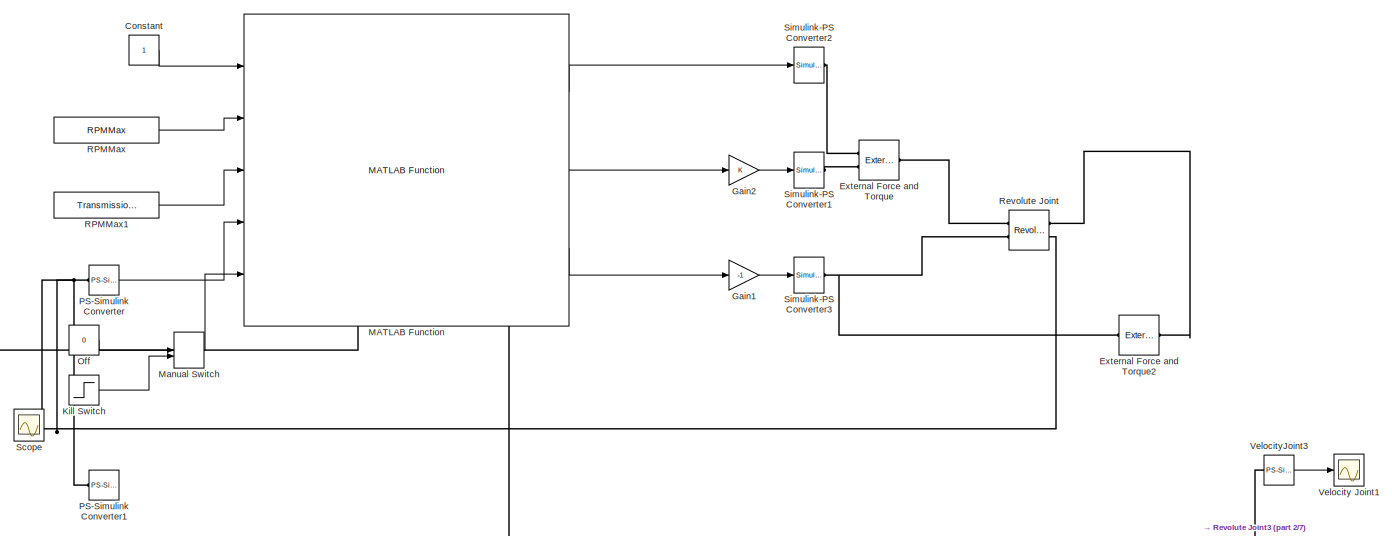
[diagram: root canvas - part 1/7, top center region]
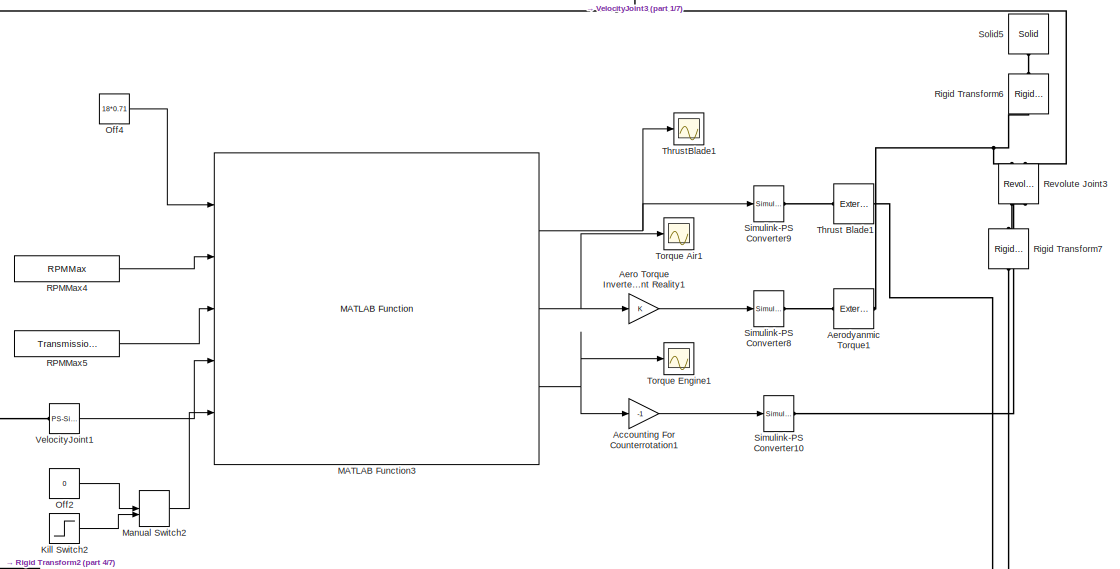
[diagram: root canvas - part 2/7, top center region]
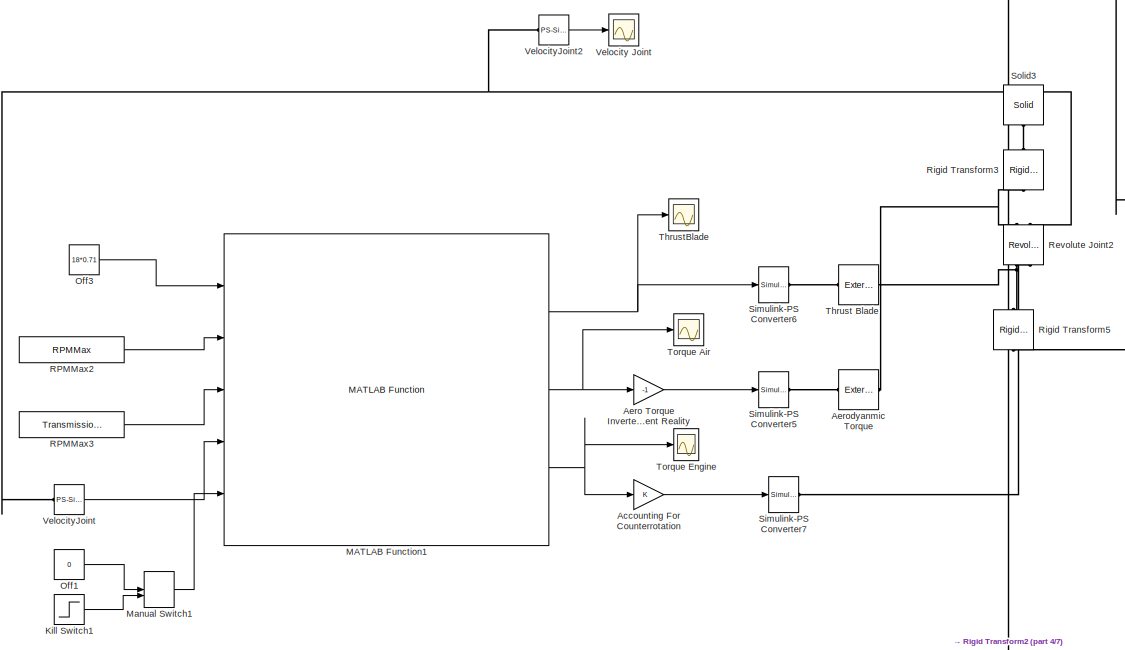
[diagram: root canvas - part 3/7, top left region]
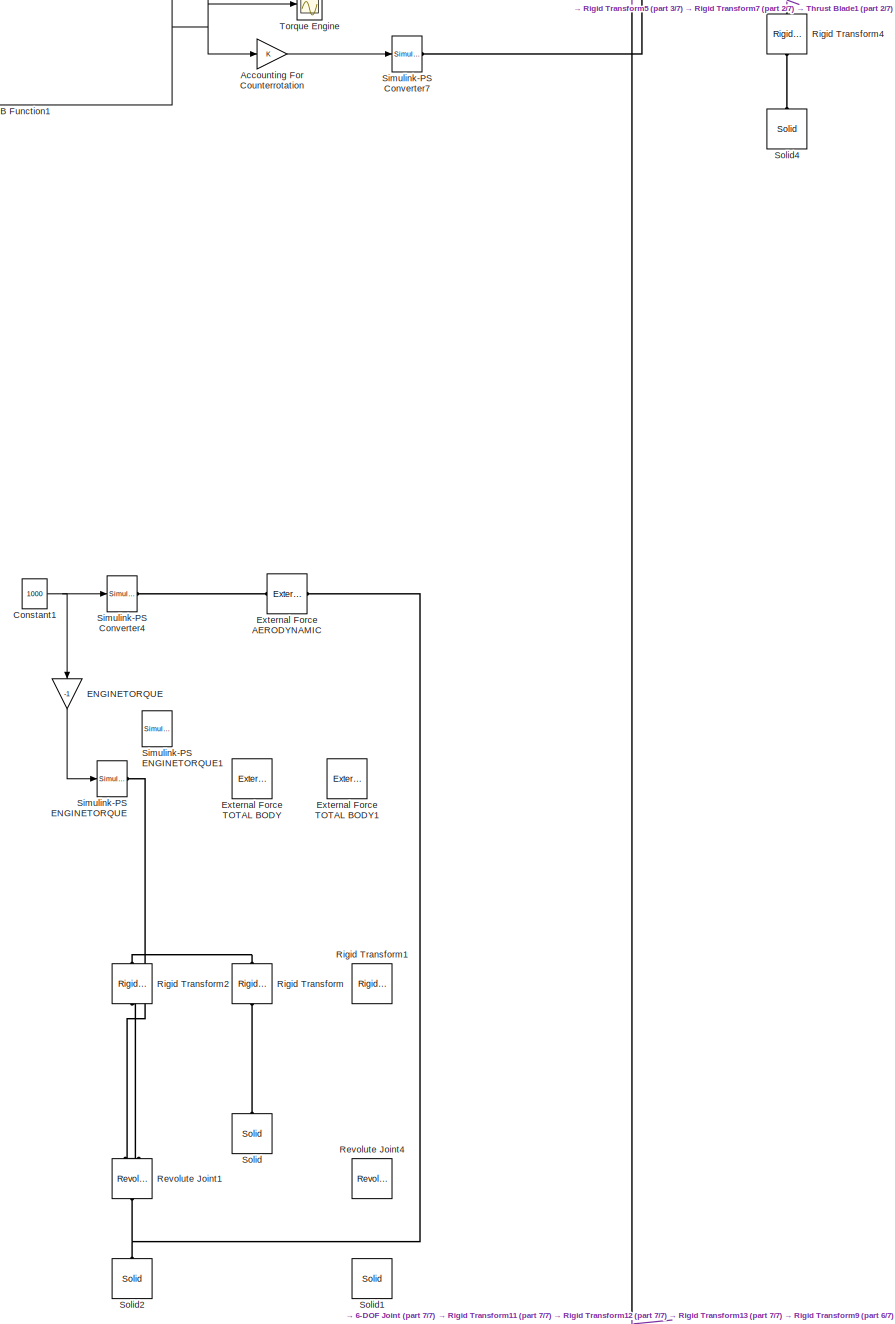
[diagram: root canvas - part 4/7, middle left region]
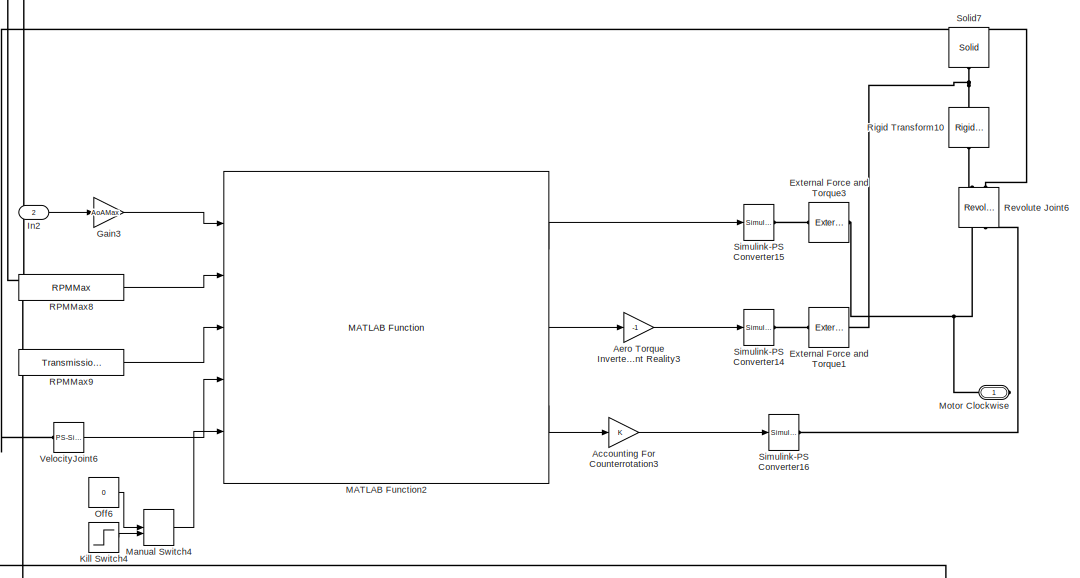
[diagram: root canvas - part 5/7, top right region]
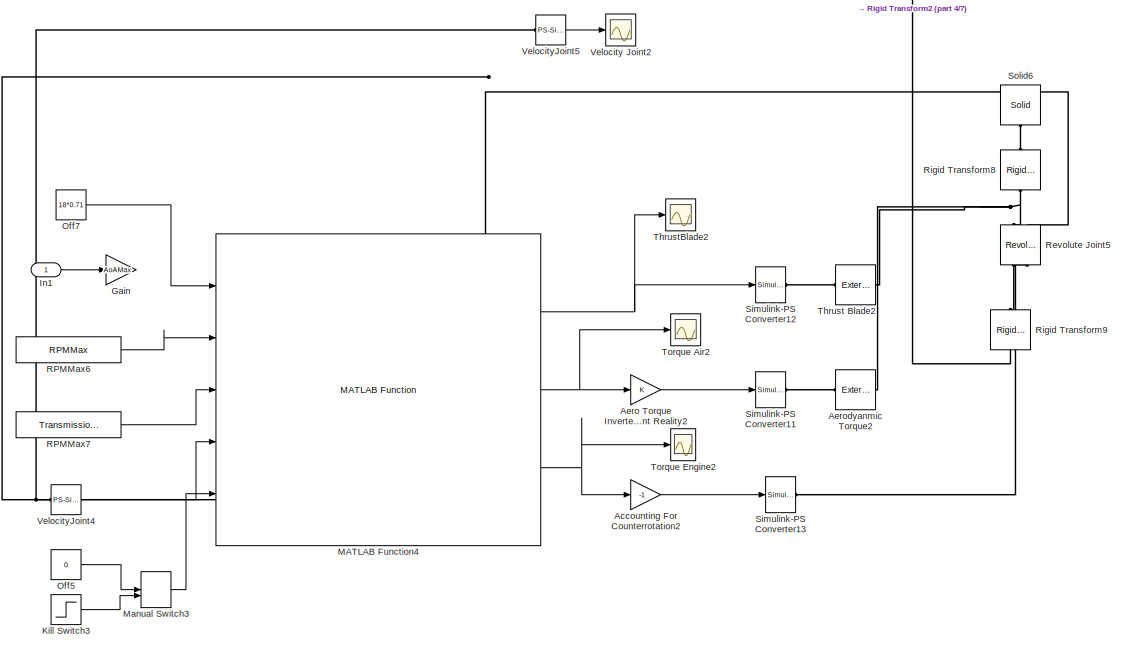
[diagram: root canvas - part 6/7, middle right region]
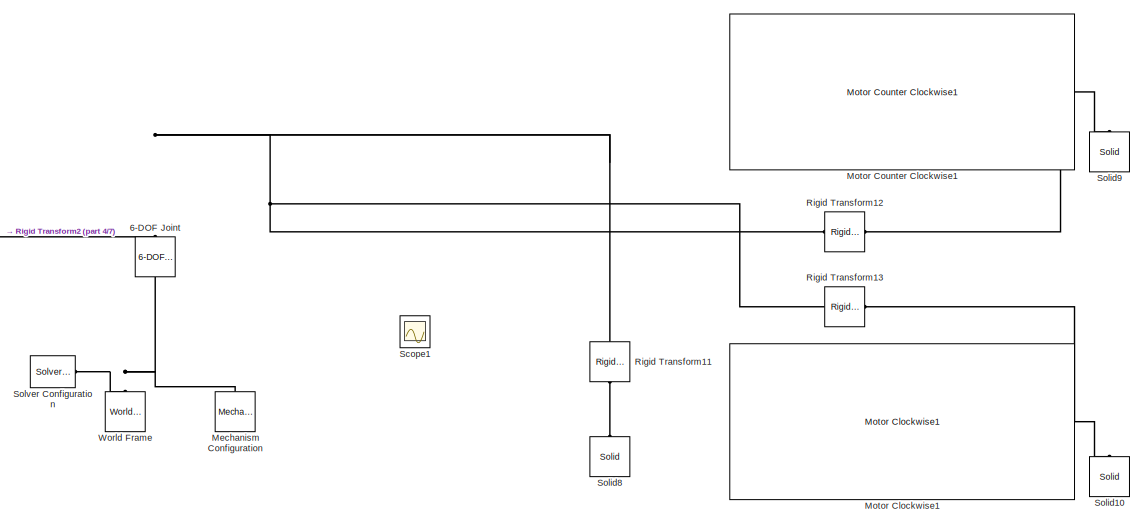
[diagram: root canvas - part 7/7, bottom center region]
MODEL slx_656336a9427a
KIND model
CONFIG AbsTol = auto
CONFIG FixedStep = 0.05
CONFIG MaxStep = auto
CONFIG MinStep = auto
CONFIG RelTol = 1e-3
CONFIG SampleTimeConstraint = Unconstrained
CONFIG Solver = FixedStepAuto
CONFIG SolverMode = Auto
CONFIG SolverName = FixedStepAuto
CONFIG StartTime = 0.0
CONFIG StopTime = 100
BLOCK [Reference] 6-DOF Joint  REF=sm_lib/Joints/6-DOF Joint
  Ports = [0, 0, 0, 0, 0, 1, 1]
  SourceBlock = sm_lib/Joints/6-DOF Joint
  SourceType = 6-DOF Joint
BLOCK [Gain] Accounting For Counterrotation
  Commented = on
  OutDataTypeStr = Inherit: Inherit via internal rule
  ParamDataTypeStr = Inherit: Inherit via internal rule
  SaturateOnIntegerOverflow = off
BLOCK [Gain] Accounting For Counterrotation1
  Commented = on
  Gain = -1
  OutDataTypeStr = Inherit: Inherit via internal rule
  ParamDataTypeStr = Inherit: Inherit via internal rule
  SaturateOnIntegerOverflow = off
BLOCK [Gain] Accounting For Counterrotation2
  Commented = on
  Gain = -1
  OutDataTypeStr = Inherit: Inherit via internal rule
  ParamDataTypeStr = Inherit: Inherit via internal rule
  SaturateOnIntegerOverflow = off
BLOCK [Gain] Accounting For Counterrotation3
  Commented = on
  OutDataTypeStr = Inherit: Inherit via internal rule
  ParamDataTypeStr = Inherit: Inherit via internal rule
  SaturateOnIntegerOverflow = off
BLOCK [Gain] Aero Torque Inverter To Represent Reality
  Commented = on
  Gain = -1
  OutDataTypeStr = Inherit: Inherit via internal rule
  ParamDataTypeStr = Inherit: Inherit via internal rule
  SaturateOnIntegerOverflow = off
BLOCK [Gain] Aero Torque Inverter To Represent Reality1
  Commented = on
  OutDataTypeStr = Inherit: Inherit via internal rule
  ParamDataTypeStr = Inherit: Inherit via internal rule
  SaturateOnIntegerOverflow = off
BLOCK [Gain] Aero Torque Inverter To Represent Reality2
  Commented = on
  OutDataTypeStr = Inherit: Inherit via internal rule
  ParamDataTypeStr = Inherit: Inherit via internal rule
  SaturateOnIntegerOverflow = off
BLOCK [Gain] Aero Torque Inverter To Represent Reality3
  Commented = on
  Gain = -1
  OutDataTypeStr = Inherit: Inherit via internal rule
  ParamDataTypeStr = Inherit: Inherit via internal rule
  SaturateOnIntegerOverflow = off
BLOCK [Reference] Aerodyanmic Torque  REF=sm_lib/Forces and
Torques/External Force
and Torque
  Commented = on
  Ports = [0, 0, 0, 0, 0, 1, 1]
  SourceBlock = sm_lib/Forces and\nTorques/External Force\nand Torque
  SourceType = External Force\nand Torque
BLOCK [Reference] Aerodyanmic Torque1  REF=sm_lib/Forces and
Torques/External Force
and Torque
  Commented = on
  Ports = [0, 0, 0, 0, 0, 1, 1]
  SourceBlock = sm_lib/Forces and\nTorques/External Force\nand Torque
  SourceType = External Force\nand Torque
BLOCK [Reference] Aerodyanmic Torque2  REF=sm_lib/Forces and
Torques/External Force
and Torque
  Commented = on
  Ports = [0, 0, 0, 0, 0, 1, 1]
  SourceBlock = sm_lib/Forces and\nTorques/External Force\nand Torque
  SourceType = External Force\nand Torque
BLOCK [Constant] Constant
  Commented = on
BLOCK [Constant] Constant1
  Commented = on
  Value = 1000
BLOCK [Gain] ENGINETORQUE
  Commented = on
  Gain = -1
  OutDataTypeStr = Inherit: Inherit via internal rule
  ParamDataTypeStr = Inherit: Inherit via internal rule
  SaturateOnIntegerOverflow = off
BLOCK [Reference] External Force AERODYNAMIC  REF=sm_lib/Forces and
Torques/External Force
and Torque
  Commented = on
  Ports = [0, 0, 0, 0, 0, 1, 1]
  SourceBlock = sm_lib/Forces and\nTorques/External Force\nand Torque
  SourceType = External Force\nand Torque
BLOCK [Reference] External Force TOTAL BODY  REF=sm_lib/Forces and
Torques/External Force
and Torque
  Commented = on
  Ports = [0, 0, 0, 0, 0, 1, 1]
  SourceBlock = sm_lib/Forces and\nTorques/External Force\nand Torque
  SourceType = External Force\nand Torque
BLOCK [Reference] External Force TOTAL BODY1  REF=sm_lib/Forces and
Torques/External Force
and Torque
  Commented = on
  Ports = [0, 0, 0, 0, 0, 1, 1]
  SourceBlock = sm_lib/Forces and\nTorques/External Force\nand Torque
  SourceType = External Force\nand Torque
BLOCK [Reference] External Force and Torque  REF=sm_lib/Forces and
Torques/External Force
and Torque
  Commented = on
  Ports = [0, 0, 0, 0, 0, 2, 1]
  SourceBlock = sm_lib/Forces and\nTorques/External Force\nand Torque
  SourceType = External Force\nand Torque
BLOCK [Reference] External Force and Torque1  REF=sm_lib/Forces and
Torques/External Force
and Torque
  Commented = on
  Ports = [0, 0, 0, 0, 0, 1, 1]
  SourceBlock = sm_lib/Forces and\nTorques/External Force\nand Torque
  SourceType = External Force\nand Torque
BLOCK [Reference] External Force and Torque2  REF=sm_lib/Forces and
Torques/External Force
and Torque
  Commented = on
  Ports = [0, 0, 0, 0, 0, 1, 1]
  SourceBlock = sm_lib/Forces and\nTorques/External Force\nand Torque
  SourceType = External Force\nand Torque
BLOCK [Reference] External Force and Torque3  REF=sm_lib/Forces and
Torques/External Force
and Torque
  Commented = on
  Ports = [0, 0, 0, 0, 0, 1, 1]
  SourceBlock = sm_lib/Forces and\nTorques/External Force\nand Torque
  SourceType = External Force\nand Torque
BLOCK [Gain] Gain
  Commented = on
  Gain = AoAMax
  OutDataTypeStr = Inherit: Inherit via internal rule
  ParamDataTypeStr = Inherit: Inherit via internal rule
  SaturateOnIntegerOverflow = off
BLOCK [Gain] Gain1
  Commented = on
  Gain = -1
  OutDataTypeStr = Inherit: Inherit via internal rule
  ParamDataTypeStr = Inherit: Inherit via internal rule
  SaturateOnIntegerOverflow = off
BLOCK [Gain] Gain2
  Commented = on
  OutDataTypeStr = Inherit: Inherit via internal rule
  ParamDataTypeStr = Inherit: Inherit via internal rule
  SaturateOnIntegerOverflow = off
BLOCK [Gain] Gain3
  Commented = on
  Gain = AoAMax
  OutDataTypeStr = Inherit: Inherit via internal rule
  ParamDataTypeStr = Inherit: Inherit via internal rule
  SaturateOnIntegerOverflow = off
BLOCK [Inport] In1
  IconDisplay = Port number
BLOCK [Inport] In2
  IconDisplay = Port number
  Port = 2
BLOCK [Step] Kill Switch
  Commented = on
  Time = 10
BLOCK [Step] Kill Switch1
  Commented = on
  Time = 5
BLOCK [Step] Kill Switch2
  Commented = on
  Time = 5
BLOCK [Step] Kill Switch3
  Commented = on
  Time = 5
BLOCK [Step] Kill Switch4
  Commented = on
  Time = 10
BLOCK [Reference] MATLAB Function  REF=Library_Octocopter/Motor Counter Clockwise1/MATLAB Function
  Commented = on
  Ports = [5, 3]
  SourceBlock = Library_Octocopter/Motor Counter Clockwise1/MATLAB Function
  SourceType = SubSystem
BLOCK [Reference] MATLAB Function1  REF=Library_Octocopter/Motor Clockwise1/MATLAB Function
  Commented = on
  Ports = [5, 3]
  SourceBlock = Library_Octocopter/Motor Clockwise1/MATLAB Function
  SourceType = SubSystem
BLOCK [Reference] MATLAB Function2  REF=Library_Octocopter/Motor Clockwise1/MATLAB Function
  Commented = on
  Ports = [5, 3]
  SourceBlock = Library_Octocopter/Motor Clockwise1/MATLAB Function
  SourceType = SubSystem
BLOCK [Reference] MATLAB Function3  REF=Library_Octocopter/Motor Counter Clockwise1/MATLAB Function
  Commented = on
  Ports = [5, 3]
  SourceBlock = Library_Octocopter/Motor Counter Clockwise1/MATLAB Function
  SourceType = SubSystem
BLOCK [Reference] MATLAB Function4  REF=Library_Octocopter/Motor Counter Clockwise1/MATLAB Function
  Commented = on
  Ports = [5, 3]
  SourceBlock = Library_Octocopter/Motor Counter Clockwise1/MATLAB Function
  SourceType = SubSystem
BLOCK [ManualSwitch] Manual Switch
  Commented = on
BLOCK [ManualSwitch] Manual Switch1
  Commented = on
  CurrentSetting = 0
BLOCK [ManualSwitch] Manual Switch2
  Commented = on
BLOCK [ManualSwitch] Manual Switch3
  Commented = on
  CurrentSetting = 0
BLOCK [ManualSwitch] Manual Switch4
  Commented = on
BLOCK [Reference] Mechanism Configuration  REF=sm_lib/Utilities/Mechanism
Configuration
  Ports = [0, 0, 0, 0, 0, 0, 1]
  SourceBlock = sm_lib/Utilities/Mechanism\nConfiguration
  SourceType = Mechanism\nConfiguration
BLOCK [PMIOPort] Motor Clockwise
  Port = 1
  Side = Right
BLOCK [Reference] Motor Clockwise1  REF=Library_Octocopter/Motor Clockwise1
  Ports = [1, 0, 0, 0, 0, 0, 1]
  SourceBlock = Library_Octocopter/Motor Clockwise1
  SourceType = SubSystem
BLOCK [Reference] Motor Counter Clockwise1  REF=Library_Octocopter/Motor Counter Clockwise1
  Ports = [1, 0, 0, 0, 0, 0, 1]
  SourceBlock = Library_Octocopter/Motor Counter Clockwise1
  SourceType = SubSystem
BLOCK [Constant] Off
  Commented = on
  Value = 0
BLOCK [Constant] Off1
  Commented = on
  Value = 0
BLOCK [Constant] Off2
  Commented = on
  Value = 0
BLOCK [Constant] Off3
  Commented = on
  Value = 18*0.71
BLOCK [Constant] Off4
  Commented = on
  Value = 18*0.71
BLOCK [Constant] Off5
  Commented = on
  Value = 0
BLOCK [Constant] Off6
  Commented = on
  Value = 0
BLOCK [Constant] Off7
  Commented = on
  Value = 18*0.71
BLOCK [Reference] PS-Simulink Converter  REF=nesl_utility/PS-Simulink
Converter
  Commented = on
  Ports = [0, 1, 0, 0, 0, 1]
  SourceBlock = nesl_utility/PS-Simulink\nConverter
  SourceType = PS-Simulink\nConverter
BLOCK [Reference] PS-Simulink Converter1  REF=nesl_utility/PS-Simulink
Converter
  Commented = on
  Ports = [0, 1, 0, 0, 0, 1]
  SourceBlock = nesl_utility/PS-Simulink\nConverter
  SourceType = PS-Simulink\nConverter
BLOCK [Constant] RPMMax
  Commented = on
  Value = RPMMax
BLOCK [Constant] RPMMax1
  Commented = on
  Value = TransmissionRatio
BLOCK [Constant] RPMMax2
  Commented = on
  Value = RPMMax
BLOCK [Constant] RPMMax3
  Commented = on
  Value = TransmissionRatio
BLOCK [Constant] RPMMax4
  Commented = on
  Value = RPMMax
BLOCK [Constant] RPMMax5
  Commented = on
  Value = TransmissionRatio
BLOCK [Constant] RPMMax6
  Commented = on
  Value = RPMMax
BLOCK [Constant] RPMMax7
  Commented = on
  Value = TransmissionRatio
BLOCK [Constant] RPMMax8
  Commented = on
  Value = RPMMax
BLOCK [Constant] RPMMax9
  Commented = on
  Value = TransmissionRatio
BLOCK [Reference] Revolute Joint  REF=sm_lib/Joints/Revolute Joint
  Commented = on
  Ports = [0, 0, 0, 0, 0, 2, 2]
  SourceBlock = sm_lib/Joints/Revolute Joint
  SourceType = Revolute Joint
BLOCK [Reference] Revolute Joint1  REF=sm_lib/Joints/Revolute Joint
  Commented = on
  Ports = [0, 0, 0, 0, 0, 2, 1]
  SourceBlock = sm_lib/Joints/Revolute Joint
  SourceType = Revolute Joint
BLOCK [Reference] Revolute Joint2  REF=sm_lib/Joints/Revolute Joint
  Commented = on
  Ports = [0, 0, 0, 0, 0, 2, 2]
  SourceBlock = sm_lib/Joints/Revolute Joint
  SourceType = Revolute Joint
BLOCK [Reference] Revolute Joint3  REF=sm_lib/Joints/Revolute Joint
  Commented = on
  Ports = [0, 0, 0, 0, 0, 2, 2]
  SourceBlock = sm_lib/Joints/Revolute Joint
  SourceType = Revolute Joint
BLOCK [Reference] Revolute Joint4  REF=sm_lib/Joints/Revolute Joint
  Commented = on
  Ports = [0, 0, 0, 0, 0, 2, 1]
  SourceBlock = sm_lib/Joints/Revolute Joint
  SourceType = Revolute Joint
BLOCK [Reference] Revolute Joint5  REF=sm_lib/Joints/Revolute Joint
  Commented = on
  Ports = [0, 0, 0, 0, 0, 2, 2]
  SourceBlock = sm_lib/Joints/Revolute Joint
  SourceType = Revolute Joint
BLOCK [Reference] Revolute Joint6  REF=sm_lib/Joints/Revolute Joint
  Commented = on
  Ports = [0, 0, 0, 0, 0, 2, 2]
  SourceBlock = sm_lib/Joints/Revolute Joint
  SourceType = Revolute Joint
BLOCK [Reference] Rigid Transform  REF=sm_lib/Frames and
Transforms/Rigid
Transform
  Commented = on
  Ports = [0, 0, 0, 0, 0, 1, 1]
  SourceBlock = sm_lib/Frames and\nTransforms/Rigid\nTransform
  SourceType = Rigid\nTransform
BLOCK [Reference] Rigid Transform1  REF=sm_lib/Frames and
Transforms/Rigid
Transform
  Commented = on
  Ports = [0, 0, 0, 0, 0, 1, 1]
  SourceBlock = sm_lib/Frames and\nTransforms/Rigid\nTransform
  SourceType = Rigid\nTransform
BLOCK [Reference] Rigid Transform10  REF=sm_lib/Frames and
Transforms/Rigid
Transform
  Commented = on
  Ports = [0, 0, 0, 0, 0, 1, 1]
  SourceBlock = sm_lib/Frames and\nTransforms/Rigid\nTransform
  SourceType = Rigid\nTransform
BLOCK [Reference] Rigid Transform11  REF=sm_lib/Frames and
Transforms/Rigid
Transform
  Ports = [0, 0, 0, 0, 0, 1, 1]
  SourceBlock = sm_lib/Frames and\nTransforms/Rigid\nTransform
  SourceType = Rigid\nTransform
BLOCK [Reference] Rigid Transform12  REF=sm_lib/Frames and
Transforms/Rigid
Transform
  Ports = [0, 0, 0, 0, 0, 1, 1]
  SourceBlock = sm_lib/Frames and\nTransforms/Rigid\nTransform
  SourceType = Rigid\nTransform
BLOCK [Reference] Rigid Transform13  REF=sm_lib/Frames and
Transforms/Rigid
Transform
  Ports = [0, 0, 0, 0, 0, 1, 1]
  SourceBlock = sm_lib/Frames and\nTransforms/Rigid\nTransform
  SourceType = Rigid\nTransform
BLOCK [Reference] Rigid Transform2  REF=sm_lib/Frames and
Transforms/Rigid
Transform
  Commented = on
  Ports = [0, 0, 0, 0, 0, 1, 1]
  SourceBlock = sm_lib/Frames and\nTransforms/Rigid\nTransform
  SourceType = Rigid\nTransform
BLOCK [Reference] Rigid Transform3  REF=sm_lib/Frames and
Transforms/Rigid
Transform
  Commented = on
  Ports = [0, 0, 0, 0, 0, 1, 1]
  SourceBlock = sm_lib/Frames and\nTransforms/Rigid\nTransform
  SourceType = Rigid\nTransform
BLOCK [Reference] Rigid Transform4  REF=sm_lib/Frames and
Transforms/Rigid
Transform
  Commented = on
  Ports = [0, 0, 0, 0, 0, 1, 1]
  SourceBlock = sm_lib/Frames and\nTransforms/Rigid\nTransform
  SourceType = Rigid\nTransform
BLOCK [Reference] Rigid Transform5  REF=sm_lib/Frames and
Transforms/Rigid
Transform
  Commented = on
  Ports = [0, 0, 0, 0, 0, 1, 1]
  SourceBlock = sm_lib/Frames and\nTransforms/Rigid\nTransform
  SourceType = Rigid\nTransform
BLOCK [Reference] Rigid Transform6  REF=sm_lib/Frames and
Transforms/Rigid
Transform
  Commented = on
  Ports = [0, 0, 0, 0, 0, 1, 1]
  SourceBlock = sm_lib/Frames and\nTransforms/Rigid\nTransform
  SourceType = Rigid\nTransform
BLOCK [Reference] Rigid Transform7  REF=sm_lib/Frames and
Transforms/Rigid
Transform
  Commented = on
  Ports = [0, 0, 0, 0, 0, 1, 1]
  SourceBlock = sm_lib/Frames and\nTransforms/Rigid\nTransform
  SourceType = Rigid\nTransform
BLOCK [Reference] Rigid Transform8  REF=sm_lib/Frames and
Transforms/Rigid
Transform
  Commented = on
  Ports = [0, 0, 0, 0, 0, 1, 1]
  SourceBlock = sm_lib/Frames and\nTransforms/Rigid\nTransform
  SourceType = Rigid\nTransform
BLOCK [Reference] Rigid Transform9  REF=sm_lib/Frames and
Transforms/Rigid
Transform
  Commented = on
  Ports = [0, 0, 0, 0, 0, 1, 1]
  SourceBlock = sm_lib/Frames and\nTransforms/Rigid\nTransform
  SourceType = Rigid\nTransform
BLOCK [Scope] Scope
  IOType = viewer
  Ports = []
  ScopeSpecificationString = Simulink.scopes.TimeScopeBlockCfg('CurrentConfiguration', extmgr.ConfigurationSet(extmgr.Configuration('Core','General UI',true),extmgr.Configuration('Core','Source UI',true),extmgr.Configuration('Sources','WiredSimulink',true,'DataLoggingVariableName','ScopeData1'),extmgr.Configuration('Visuals','Time Domain',true),extmgr.Configuration('Tools','Plot Navigation',true),extmgr.Configuration('Tools',...<+84ch>
BLOCK [Scope] Scope1
  Ports = [1]
  ScopeSpecificationString = Simulink.scopes.TimeScopeBlockCfg('CurrentConfiguration', extmgr.ConfigurationSet(extmgr.Configuration('Core','General UI',true),extmgr.Configuration('Core','Source UI',true),extmgr.Configuration('Sources','WiredSimulink',true,'DataLoggingVariableName','ScopeData2'),extmgr.Configuration('Visuals','Time Domain',true),extmgr.Configuration('Tools','Plot Navigation',true),extmgr.Configuration('Tools',...<+58ch>
BLOCK [Reference] Simulink-PS Converter1  REF=nesl_utility/Simulink-PS
Converter
  Commented = on
  Ports = [1, 0, 0, 0, 0, 0, 1]
  SourceBlock = nesl_utility/Simulink-PS\nConverter
  SourceType = Simulink-PS\nConverter
BLOCK [Reference] Simulink-PS Converter10  REF=nesl_utility/Simulink-PS
Converter
  Commented = on
  Ports = [1, 0, 0, 0, 0, 0, 1]
  SourceBlock = nesl_utility/Simulink-PS\nConverter
  SourceType = Simulink-PS\nConverter
BLOCK [Reference] Simulink-PS Converter11  REF=nesl_utility/Simulink-PS
Converter
  Commented = on
  Ports = [1, 0, 0, 0, 0, 0, 1]
  SourceBlock = nesl_utility/Simulink-PS\nConverter
  SourceType = Simulink-PS\nConverter
BLOCK [Reference] Simulink-PS Converter12  REF=nesl_utility/Simulink-PS
Converter
  Commented = on
  Ports = [1, 0, 0, 0, 0, 0, 1]
  SourceBlock = nesl_utility/Simulink-PS\nConverter
  SourceType = Simulink-PS\nConverter
BLOCK [Reference] Simulink-PS Converter13  REF=nesl_utility/Simulink-PS
Converter
  Commented = on
  Ports = [1, 0, 0, 0, 0, 0, 1]
  SourceBlock = nesl_utility/Simulink-PS\nConverter
  SourceType = Simulink-PS\nConverter
BLOCK [Reference] Simulink-PS Converter14  REF=nesl_utility/Simulink-PS
Converter
  Commented = on
  Ports = [1, 0, 0, 0, 0, 0, 1]
  SourceBlock = nesl_utility/Simulink-PS\nConverter
  SourceType = Simulink-PS\nConverter
BLOCK [Reference] Simulink-PS Converter15  REF=nesl_utility/Simulink-PS
Converter
  Commented = on
  Ports = [1, 0, 0, 0, 0, 0, 1]
  SourceBlock = nesl_utility/Simulink-PS\nConverter
  SourceType = Simulink-PS\nConverter
BLOCK [Reference] Simulink-PS Converter16  REF=nesl_utility/Simulink-PS
Converter
  Commented = on
  Ports = [1, 0, 0, 0, 0, 0, 1]
  SourceBlock = nesl_utility/Simulink-PS\nConverter
  SourceType = Simulink-PS\nConverter
BLOCK [Reference] Simulink-PS Converter2  REF=nesl_utility/Simulink-PS
Converter
  Commented = on
  Ports = [1, 0, 0, 0, 0, 0, 1]
  SourceBlock = nesl_utility/Simulink-PS\nConverter
  SourceType = Simulink-PS\nConverter
BLOCK [Reference] Simulink-PS Converter3  REF=nesl_utility/Simulink-PS
Converter
  Commented = on
  Ports = [1, 0, 0, 0, 0, 0, 1]
  SourceBlock = nesl_utility/Simulink-PS\nConverter
  SourceType = Simulink-PS\nConverter
BLOCK [Reference] Simulink-PS Converter4  REF=nesl_utility/Simulink-PS
Converter
  Commented = on
  Ports = [1, 0, 0, 0, 0, 0, 1]
  SourceBlock = nesl_utility/Simulink-PS\nConverter
  SourceType = Simulink-PS\nConverter
BLOCK [Reference] Simulink-PS Converter5  REF=nesl_utility/Simulink-PS
Converter
  Commented = on
  Ports = [1, 0, 0, 0, 0, 0, 1]
  SourceBlock = nesl_utility/Simulink-PS\nConverter
  SourceType = Simulink-PS\nConverter
BLOCK [Reference] Simulink-PS Converter6  REF=nesl_utility/Simulink-PS
Converter
  Commented = on
  Ports = [1, 0, 0, 0, 0, 0, 1]
  SourceBlock = nesl_utility/Simulink-PS\nConverter
  SourceType = Simulink-PS\nConverter
BLOCK [Reference] Simulink-PS Converter7  REF=nesl_utility/Simulink-PS
Converter
  Commented = on
  Ports = [1, 0, 0, 0, 0, 0, 1]
  SourceBlock = nesl_utility/Simulink-PS\nConverter
  SourceType = Simulink-PS\nConverter
BLOCK [Reference] Simulink-PS Converter8  REF=nesl_utility/Simulink-PS
Converter
  Commented = on
  Ports = [1, 0, 0, 0, 0, 0, 1]
  SourceBlock = nesl_utility/Simulink-PS\nConverter
  SourceType = Simulink-PS\nConverter
BLOCK [Reference] Simulink-PS Converter9  REF=nesl_utility/Simulink-PS
Converter
  Commented = on
  Ports = [1, 0, 0, 0, 0, 0, 1]
  SourceBlock = nesl_utility/Simulink-PS\nConverter
  SourceType = Simulink-PS\nConverter
BLOCK [Reference] Simulink-PS ENGINETORQUE  REF=nesl_utility/Simulink-PS
Converter
  Commented = on
  Ports = [1, 0, 0, 0, 0, 0, 1]
  SourceBlock = nesl_utility/Simulink-PS\nConverter
  SourceType = Simulink-PS\nConverter
BLOCK [Reference] Simulink-PS ENGINETORQUE1  REF=nesl_utility/Simulink-PS
Converter
  Commented = on
  Ports = [1, 0, 0, 0, 0, 0, 1]
  SourceBlock = nesl_utility/Simulink-PS\nConverter
  SourceType = Simulink-PS\nConverter
BLOCK [Reference] Solid  REF=sm_lib/Body Elements/Solid
  Commented = on
  Ports = [0, 0, 0, 0, 0, 0, 1]
  SourceBlock = sm_lib/Body Elements/Solid
  SourceType = Solid
BLOCK [Reference] Solid1  REF=sm_lib/Body Elements/Solid
  Commented = on
  Ports = [0, 0, 0, 0, 0, 0, 1]
  SourceBlock = sm_lib/Body Elements/Solid
  SourceType = Solid
BLOCK [Reference] Solid10  REF=sm_lib/Body Elements/Solid
  Ports = [0, 0, 0, 0, 0, 0, 1]
  SourceBlock = sm_lib/Body Elements/Solid
  SourceType = Solid
BLOCK [Reference] Solid2  REF=sm_lib/Body Elements/Solid
  Commented = on
  Ports = [0, 0, 0, 0, 0, 0, 1]
  SourceBlock = sm_lib/Body Elements/Solid
  SourceType = Solid
BLOCK [Reference] Solid3  REF=sm_lib/Body Elements/Solid
  Commented = on
  Ports = [0, 0, 0, 0, 0, 0, 1]
  SourceBlock = sm_lib/Body Elements/Solid
  SourceType = Solid
BLOCK [Reference] Solid4  REF=sm_lib/Body Elements/Solid
  Commented = on
  Ports = [0, 0, 0, 0, 0, 0, 1]
  SourceBlock = sm_lib/Body Elements/Solid
  SourceType = Solid
BLOCK [Reference] Solid5  REF=sm_lib/Body Elements/Solid
  Commented = on
  Ports = [0, 0, 0, 0, 0, 0, 1]
  SourceBlock = sm_lib/Body Elements/Solid
  SourceType = Solid
BLOCK [Reference] Solid6  REF=sm_lib/Body Elements/Solid
  Commented = on
  Ports = [0, 0, 0, 0, 0, 0, 1]
  SourceBlock = sm_lib/Body Elements/Solid
  SourceType = Solid
BLOCK [Reference] Solid7  REF=sm_lib/Body Elements/Solid
  Commented = on
  Ports = [0, 0, 0, 0, 0, 0, 1]
  SourceBlock = sm_lib/Body Elements/Solid
  SourceType = Solid
BLOCK [Reference] Solid8  REF=sm_lib/Body Elements/Solid
  Ports = [0, 0, 0, 0, 0, 0, 1]
  SourceBlock = sm_lib/Body Elements/Solid
  SourceType = Solid
BLOCK [Reference] Solid9  REF=sm_lib/Body Elements/Solid
  Ports = [0, 0, 0, 0, 0, 0, 1]
  SourceBlock = sm_lib/Body Elements/Solid
  SourceType = Solid
BLOCK [Reference] Solver Configuration  REF=nesl_utility/Solver
Configuration
  Ports = [0, 0, 0, 0, 0, 0, 1]
  SourceBlock = nesl_utility/Solver\nConfiguration
  SourceType = Solver\nConfiguration
BLOCK [Reference] Thrust Blade  REF=sm_lib/Forces and
Torques/External Force
and Torque
  Commented = on
  Ports = [0, 0, 0, 0, 0, 1, 1]
  SourceBlock = sm_lib/Forces and\nTorques/External Force\nand Torque
  SourceType = External Force\nand Torque
BLOCK [Reference] Thrust Blade1  REF=sm_lib/Forces and
Torques/External Force
and Torque
  Commented = on
  Ports = [0, 0, 0, 0, 0, 1, 1]
  SourceBlock = sm_lib/Forces and\nTorques/External Force\nand Torque
  SourceType = External Force\nand Torque
BLOCK [Reference] Thrust Blade2  REF=sm_lib/Forces and
Torques/External Force
and Torque
  Commented = on
  Ports = [0, 0, 0, 0, 0, 1, 1]
  SourceBlock = sm_lib/Forces and\nTorques/External Force\nand Torque
  SourceType = External Force\nand Torque
BLOCK [Scope] ThrustBlade
  Commented = on
  Ports = [1]
  ScopeSpecificationString = Simulink.scopes.TimeScopeBlockCfg('CurrentConfiguration', extmgr.ConfigurationSet(extmgr.Configuration('Core','General UI',true),extmgr.Configuration('Core','Source UI',true),extmgr.Configuration('Sources','WiredSimulink',true,'DataLoggingVariableName','ScopeData2'),extmgr.Configuration('Visuals','Time Domain',true,'SerializedDisplays',{struct('MinYLimReal','-1930.46557','MaxYLimReal','17374.19012...<+1470ch>
BLOCK [Scope] ThrustBlade1
  Commented = on
  Ports = [1]
  ScopeSpecificationString = Simulink.scopes.TimeScopeBlockCfg('CurrentConfiguration', extmgr.ConfigurationSet(extmgr.Configuration('Core','General UI',true),extmgr.Configuration('Core','Source UI',true),extmgr.Configuration('Sources','WiredSimulink',true,'DataLoggingVariableName','ScopeData5'),extmgr.Configuration('Visuals','Time Domain',true,'SerializedDisplays',{struct('MinYLimReal','5440.10058','MaxYLimReal','25440.10058'...<+1470ch>
BLOCK [Scope] ThrustBlade2
  Commented = on
  Ports = [1]
  ScopeSpecificationString = Simulink.scopes.TimeScopeBlockCfg('CurrentConfiguration', extmgr.ConfigurationSet(extmgr.Configuration('Core','General UI',true),extmgr.Configuration('Core','Source UI',true),extmgr.Configuration('Sources','WiredSimulink',true,'DataLoggingVariableName','ScopeData1'),extmgr.Configuration('Visuals','Time Domain',true,'SerializedDisplays',{struct('MinYLimReal','-1930.46557','MaxYLimReal','17374.19012...<+1470ch>
BLOCK [Scope] Torque Air
  Commented = on
  Ports = [1]
  ScopeSpecificationString = Simulink.scopes.TimeScopeBlockCfg('CurrentConfiguration', extmgr.ConfigurationSet(extmgr.Configuration('Core','General UI',true),extmgr.Configuration('Core','Source UI',true),extmgr.Configuration('Sources','WiredSimulink',true,'DataLoggingVariableName','ScopeData3'),extmgr.Configuration('Visuals','Time Domain',true,'SerializedDisplays',{struct('MinYLimReal','-528.6087','MaxYLimReal','4757.47829','...<+1458ch>
BLOCK [Scope] Torque Air1
  Commented = on
  Ports = [1]
  ScopeSpecificationString = Simulink.scopes.TimeScopeBlockCfg('CurrentConfiguration', extmgr.ConfigurationSet(extmgr.Configuration('Core','General UI',true),extmgr.Configuration('Core','Source UI',true),extmgr.Configuration('Sources','WiredSimulink',true,'DataLoggingVariableName','ScopeData6'),extmgr.Configuration('Visuals','Time Domain',true,'SerializedDisplays',{struct('MinYLimReal','459.51361','MaxYLimReal','2459.51361','...<+1460ch>
BLOCK [Scope] Torque Air2
  Commented = on
  Ports = [1]
  ScopeSpecificationString = Simulink.scopes.TimeScopeBlockCfg('CurrentConfiguration', extmgr.ConfigurationSet(extmgr.Configuration('Core','General UI',true),extmgr.Configuration('Core','Source UI',true),extmgr.Configuration('Sources','WiredSimulink',true,'DataLoggingVariableName','ScopeData2'),extmgr.Configuration('Visuals','Time Domain',true,'SerializedDisplays',{struct('MinYLimReal','-528.6087','MaxYLimReal','4757.47829','...<+1458ch>
BLOCK [Scope] Torque Engine
  Commented = on
  Ports = [1]
  ScopeSpecificationString = Simulink.scopes.TimeScopeBlockCfg('CurrentConfiguration', extmgr.ConfigurationSet(extmgr.Configuration('Core','General UI',true),extmgr.Configuration('Core','Source UI',true),extmgr.Configuration('Sources','WiredSimulink',true,'DataLoggingVariableName','ScopeData4'),extmgr.Configuration('Visuals','Time Domain',true,'SerializedDisplays',{struct('MinYLimReal','-1383.43987','MaxYLimReal','12450.95887...<+1471ch>
BLOCK [Scope] Torque Engine1
  Commented = on
  Ports = [1]
  ScopeSpecificationString = Simulink.scopes.TimeScopeBlockCfg('CurrentConfiguration', extmgr.ConfigurationSet(extmgr.Configuration('Core','General UI',true),extmgr.Configuration('Core','Source UI',true),extmgr.Configuration('Sources','WiredSimulink',true,'DataLoggingVariableName','ScopeData7'),extmgr.Configuration('Visuals','Time Domain',true,'SerializedDisplays',{struct('MinYLimReal','3364.53139','MaxYLimReal','11997.99006'...<+1471ch>
BLOCK [Scope] Torque Engine2
  Commented = on
  Ports = [1]
  ScopeSpecificationString = Simulink.scopes.TimeScopeBlockCfg('CurrentConfiguration', extmgr.ConfigurationSet(extmgr.Configuration('Core','General UI',true),extmgr.Configuration('Core','Source UI',true),extmgr.Configuration('Sources','WiredSimulink',true,'DataLoggingVariableName','ScopeData3'),extmgr.Configuration('Visuals','Time Domain',true,'SerializedDisplays',{struct('MinYLimReal','-1383.43987','MaxYLimReal','12450.95887...<+1471ch>
BLOCK [Scope] Velocity Joint
  Commented = on
  Ports = [1]
  ScopeSpecificationString = Simulink.scopes.TimeScopeBlockCfg('CurrentConfiguration', extmgr.ConfigurationSet(extmgr.Configuration('Core','General UI',true),extmgr.Configuration('Core','Source UI',true),extmgr.Configuration('Sources','WiredSimulink',true),extmgr.Configuration('Visuals','Time Domain',true,'SerializedDisplays',{struct('MinYLimReal','-6.98296','MaxYLimReal','62.8466','YLabelReal','','MinYLimMag','0.00000','MaxY...<+1391ch>
BLOCK [Scope] Velocity Joint1
  Commented = on
  Ports = [1]
  ScopeSpecificationString = Simulink.scopes.TimeScopeBlockCfg('CurrentConfiguration', extmgr.ConfigurationSet(extmgr.Configuration('Core','General UI',true),extmgr.Configuration('Core','Source UI',true),extmgr.Configuration('Sources','WiredSimulink',true,'DataLoggingVariableName','ScopeData1'),extmgr.Configuration('Visuals','Time Domain',true,'SerializedDisplays',{struct('MinYLimReal','-81.31951','MaxYLimReal','70.04126','YL...<+1436ch>
BLOCK [Scope] Velocity Joint2
  Commented = on
  Ports = [1]
  ScopeSpecificationString = Simulink.scopes.TimeScopeBlockCfg('CurrentConfiguration', extmgr.ConfigurationSet(extmgr.Configuration('Core','General UI',true),extmgr.Configuration('Core','Source UI',true),extmgr.Configuration('Sources','WiredSimulink',true,'DataLoggingVariableName','ScopeData4'),extmgr.Configuration('Visuals','Time Domain',true,'SerializedDisplays',{struct('MinYLimReal','-62.8466','MaxYLimReal','6.98296','YLab...<+1430ch>
BLOCK [Reference] VelocityJoint  REF=nesl_utility/PS-Simulink
Converter
  Commented = on
  Ports = [0, 1, 0, 0, 0, 1]
  SourceBlock = nesl_utility/PS-Simulink\nConverter
  SourceType = PS-Simulink\nConverter
BLOCK [Reference] VelocityJoint1  REF=nesl_utility/PS-Simulink
Converter
  Commented = on
  Ports = [0, 1, 0, 0, 0, 1]
  SourceBlock = nesl_utility/PS-Simulink\nConverter
  SourceType = PS-Simulink\nConverter
BLOCK [Reference] VelocityJoint2  REF=nesl_utility/PS-Simulink
Converter
  Commented = on
  Ports = [0, 1, 0, 0, 0, 1]
  SourceBlock = nesl_utility/PS-Simulink\nConverter
  SourceType = PS-Simulink\nConverter
BLOCK [Reference] VelocityJoint3  REF=nesl_utility/PS-Simulink
Converter
  Commented = on
  Ports = [0, 1, 0, 0, 0, 1]
  SourceBlock = nesl_utility/PS-Simulink\nConverter
  SourceType = PS-Simulink\nConverter
BLOCK [Reference] VelocityJoint4  REF=nesl_utility/PS-Simulink
Converter
  Commented = on
  Ports = [0, 1, 0, 0, 0, 1]
  SourceBlock = nesl_utility/PS-Simulink\nConverter
  SourceType = PS-Simulink\nConverter
BLOCK [Reference] VelocityJoint5  REF=nesl_utility/PS-Simulink
Converter
  Commented = on
  Ports = [0, 1, 0, 0, 0, 1]
  SourceBlock = nesl_utility/PS-Simulink\nConverter
  SourceType = PS-Simulink\nConverter
BLOCK [Reference] VelocityJoint6  REF=nesl_utility/PS-Simulink
Converter
  Commented = on
  Ports = [0, 1, 0, 0, 0, 1]
  SourceBlock = nesl_utility/PS-Simulink\nConverter
  SourceType = PS-Simulink\nConverter
BLOCK [Reference] World Frame  REF=sm_lib/Frames and
Transforms/World Frame
  Ports = [0, 0, 0, 0, 0, 0, 1]
  SourceBlock = sm_lib/Frames and\nTransforms/World Frame
  SourceType = World Frame
LINE Accounting For Counterrotation1:1 -> Simulink-PS Converter10:1
LINE Accounting For Counterrotation2:1 -> Simulink-PS Converter13:1
LINE Accounting For Counterrotation3:1 -> Simulink-PS Converter16:1
LINE Accounting For Counterrotation:1 -> Simulink-PS Converter7:1
LINE Aero Torque Inverter To Represent Reality1:1 -> Simulink-PS Converter8:1
LINE Aero Torque Inverter To Represent Reality2:1 -> Simulink-PS Converter11:1
LINE Aero Torque Inverter To Represent Reality3:1 -> Simulink-PS Converter14:1
LINE Aero Torque Inverter To Represent Reality:1 -> Simulink-PS Converter5:1
NET Constant1:1 -> ENGINETORQUE:1, Simulink-PS Converter4:1
LINE Constant:1 -> MATLAB Function:1
LINE ENGINETORQUE:1 -> Simulink-PS ENGINETORQUE:1
LINE Gain1:1 -> Simulink-PS Converter3:1
LINE Gain2:1 -> Simulink-PS Converter1:1
LINE Gain3:1 -> MATLAB Function2:1
LINE In1:1 -> Gain:1
LINE In2:1 -> Gain3:1
LINE Kill Switch1:1 -> Manual Switch1:2
LINE Kill Switch2:1 -> Manual Switch2:2
LINE Kill Switch3:1 -> Manual Switch3:2
LINE Kill Switch4:1 -> Manual Switch4:2
LINE Kill Switch:1 -> Manual Switch:2
NET MATLAB Function1:1 -> Simulink-PS Converter6:1, ThrustBlade:1
NET MATLAB Function1:2 -> Aero Torque Inverter To Represent Reality:1, Torque Air:1
NET MATLAB Function1:3 -> Accounting For Counterrotation:1, Torque Engine:1
LINE MATLAB Function2:1 -> Simulink-PS Converter15:1
LINE MATLAB Function2:2 -> Aero Torque Inverter To Represent Reality3:1
LINE MATLAB Function2:3 -> Accounting For Counterrotation3:1
NET MATLAB Function3:1 -> Simulink-PS Converter9:1, ThrustBlade1:1
NET MATLAB Function3:2 -> Aero Torque Inverter To Represent Reality1:1, Torque Air1:1
NET MATLAB Function3:3 -> Accounting For Counterrotation1:1, Torque Engine1:1
NET MATLAB Function4:1 -> Simulink-PS Converter12:1, ThrustBlade2:1
NET MATLAB Function4:2 -> Aero Torque Inverter To Represent Reality2:1, Torque Air2:1
NET MATLAB Function4:3 -> Accounting For Counterrotation2:1, Torque Engine2:1
LINE MATLAB Function:1 -> Simulink-PS Converter2:1
LINE MATLAB Function:2 -> Gain2:1
LINE MATLAB Function:3 -> Gain1:1
LINE Manual Switch1:1 -> MATLAB Function1:5
LINE Manual Switch2:1 -> MATLAB Function3:5
LINE Manual Switch3:1 -> MATLAB Function4:5
LINE Manual Switch4:1 -> MATLAB Function2:5
LINE Manual Switch:1 -> MATLAB Function:5
LINE Off1:1 -> Manual Switch1:1
LINE Off2:1 -> Manual Switch2:1
LINE Off3:1 -> MATLAB Function1:1
LINE Off4:1 -> MATLAB Function3:1
LINE Off5:1 -> Manual Switch3:1
LINE Off6:1 -> Manual Switch4:1
LINE Off7:1 -> MATLAB Function4:1
LINE Off:1 -> Manual Switch:1
LINE PS-Simulink Converter:1 -> MATLAB Function:4
LINE RPMMax1:1 -> MATLAB Function:3
LINE RPMMax2:1 -> MATLAB Function1:2
LINE RPMMax3:1 -> MATLAB Function1:3
LINE RPMMax4:1 -> MATLAB Function3:2
LINE RPMMax5:1 -> MATLAB Function3:3
LINE RPMMax6:1 -> MATLAB Function4:2
LINE RPMMax7:1 -> MATLAB Function4:3
LINE RPMMax8:1 -> MATLAB Function2:2
LINE RPMMax9:1 -> MATLAB Function2:3
LINE RPMMax:1 -> MATLAB Function:2
LINE VelocityJoint1:1 -> MATLAB Function3:4
LINE VelocityJoint2:1 -> Velocity Joint:1
LINE VelocityJoint3:1 -> Velocity Joint1:1
LINE VelocityJoint4:1 -> MATLAB Function4:4
LINE VelocityJoint5:1 -> Velocity Joint2:1
LINE VelocityJoint6:1 -> MATLAB Function2:4
LINE VelocityJoint:1 -> MATLAB Function1:4
PNET net1: 6-DOF Joint:LConn1 -- Mechanism Configuration:RConn1 -- Solver Configuration:RConn1 -- World Frame:RConn1
PNET net2: 6-DOF Joint:RConn1 -- Rigid Transform11:LConn1 -- Rigid Transform12:LConn1 -- Rigid Transform13:LConn1 -- Rigid Transform2:LConn1 -- Rigid Transform4:LConn1 -- Rigid Transform5:LConn1 -- Rigid Transform7:LConn1 -- Rigid Transform9:LConn1 -- Rigid Transform:LConn1 -- Thrust Blade1:RConn1
PLINE Aerodyanmic Torque1:LConn1 -- Simulink-PS Converter8:RConn1
PNET net3: Aerodyanmic Torque1:RConn1 -- Revolute Joint3:RConn1 -- Rigid Transform6:LConn1
PLINE Aerodyanmic Torque2:LConn1 -- Simulink-PS Converter11:RConn1
PNET net4: Aerodyanmic Torque2:RConn1 -- Revolute Joint5:RConn1 -- Rigid Transform8:LConn1 -- Thrust Blade2:RConn1
PLINE Aerodyanmic Torque:LConn1 -- Simulink-PS Converter5:RConn1
PNET net5: Aerodyanmic Torque:RConn1 -- Revolute Joint2:RConn1 -- Rigid Transform3:LConn1
PLINE External Force AERODYNAMIC:LConn1 -- Simulink-PS Converter4:RConn1
PNET net6: External Force AERODYNAMIC:RConn1 -- Revolute Joint1:RConn1 -- Solid2:RConn1
PLINE External Force and Torque1:LConn1 -- Simulink-PS Converter14:RConn1
PNET net7: External Force and Torque1:RConn1 -- Rigid Transform10:LConn1 -- Solid7:RConn1
PNET net8: External Force and Torque2:LConn1 -- Revolute Joint:LConn2 -- Simulink-PS Converter3:RConn1
PLINE External Force and Torque2:RConn1 -- Revolute Joint:RConn1
PLINE External Force and Torque3:LConn1 -- Simulink-PS Converter15:RConn1
PNET net9: External Force and Torque3:RConn1 -- Motor Clockwise:RConn1 -- Revolute Joint6:LConn1
PLINE External Force and Torque:LConn1 -- Simulink-PS Converter2:RConn1
PLINE External Force and Torque:LConn2 -- Simulink-PS Converter1:RConn1
PLINE External Force and Torque:RConn1 -- Revolute Joint:LConn1
PNET net10: Motor Clockwise1:RConn1 -- Rigid Transform13:RConn1 -- Solid10:RConn1
PNET net11: Motor Counter Clockwise1:RConn1 -- Rigid Transform12:RConn1 -- Solid9:RConn1
PNET net12: PS-Simulink Converter1:LConn1 -- PS-Simulink Converter:LConn1 -- Revolute Joint:RConn2
PLINE Revolute Joint1:LConn1 -- Rigid Transform2:RConn1
PLINE Revolute Joint1:LConn2 -- Simulink-PS ENGINETORQUE:RConn1
PNET net13: Revolute Joint2:LConn1 -- Rigid Transform5:RConn1 -- Thrust Blade:RConn1
PLINE Revolute Joint2:LConn2 -- Simulink-PS Converter7:RConn1
PNET net14: Revolute Joint2:RConn2 -- VelocityJoint2:LConn1 -- VelocityJoint:LConn1
PLINE Revolute Joint3:LConn1 -- Rigid Transform7:RConn1
PLINE Revolute Joint3:LConn2 -- Simulink-PS Converter10:RConn1
PNET net15: Revolute Joint3:RConn2 -- VelocityJoint1:LConn1 -- VelocityJoint3:LConn1
PLINE Revolute Joint5:LConn1 -- Rigid Transform9:RConn1
PLINE Revolute Joint5:LConn2 -- Simulink-PS Converter13:RConn1
PNET net16: Revolute Joint5:RConn2 -- VelocityJoint4:LConn1 -- VelocityJoint5:LConn1
PLINE Revolute Joint6:LConn2 -- Simulink-PS Converter16:RConn1
PLINE Revolute Joint6:RConn1 -- Rigid Transform10:RConn1
PLINE Revolute Joint6:RConn2 -- VelocityJoint6:LConn1
PLINE Rigid Transform11:RConn1 -- Solid8:RConn1
PLINE Rigid Transform3:RConn1 -- Solid3:RConn1
PLINE Rigid Transform4:RConn1 -- Solid4:RConn1
PLINE Rigid Transform6:RConn1 -- Solid5:RConn1
PLINE Rigid Transform8:RConn1 -- Solid6:RConn1
PLINE Rigid Transform:RConn1 -- Solid:RConn1
PLINE Simulink-PS Converter12:RConn1 -- Thrust Blade2:LConn1
PLINE Simulink-PS Converter6:RConn1 -- Thrust Blade:LConn1
PLINE Simulink-PS Converter9:RConn1 -- Thrust Blade1:LConn1
note: NET lines group one-source signal fan-out (src -> all destinations, sorted); 1:1 wires keep LINE; PNET lines group multi-terminal physical nets as a canonical sorted terminal list (undirected conserving connections); 2-terminal nets keep the pairwise PLINE form
